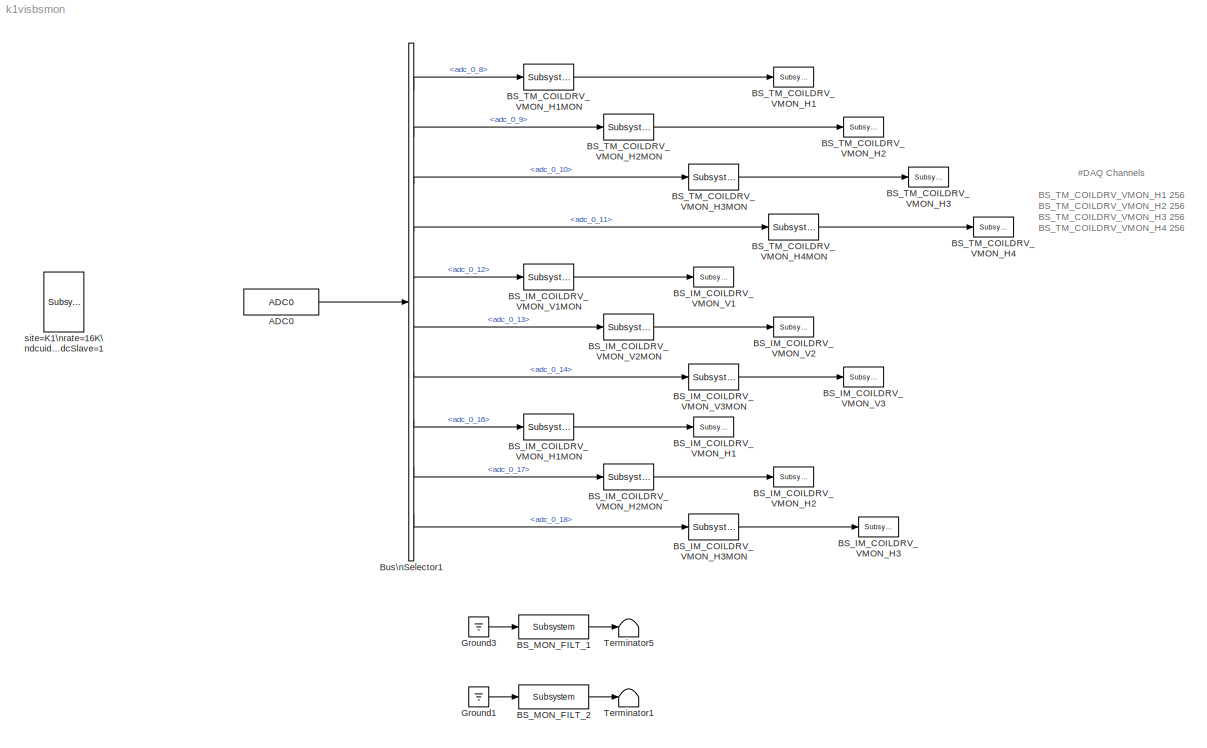
MODEL k1visbsmon
KIND model
BLOCK [Reference] ADC0  REF=cdsAdcx0/ADC0
  AttributesFormatString = %<Description>\\n%<Tag>
  Description = type-GSC_16AI64SSA\ncard_num=0
  Ports = [0, 1]
  SID = 257
  SourceBlock = cdsAdcx0/ADC0
  SourceType = SubSystem
  Tag = cdsAdc
BLOCK [Reference] BS_IM_COILDRV_VMON_H1  REF=cdsTP/Subsystem
  AttributesFormatString = %<Tag>
  Ports = [1]
  SID = 697
  SourceBlock = cdsTP/Subsystem
  SourceType = SubSystem
  Tag = Test Point
BLOCK [Reference] BS_IM_COILDRV_VMON_H1MON  REF=cdsEpicsOut/Subsystem
  AttributesFormatString = %<Tag>
  Description = Purpose:                                          \nOutput a FE signal to an EPICS channel.           \n                                                  \nOperation:                                        \nTakes input value and passes it to EPICS record.  \n                                                  \nUsage:                                            \nName the part with the desired EPICS...<+14ch>  <repeated x10 — deduplicated; at blocks: BS_IM_COILDRV_VMON_H1MON, BS_IM_COILDRV_VMON_H2MON, BS_IM_COILDRV_VMON_H3MON, BS_IM_COILDRV_VMON_V1MON, BS_IM_COILDRV_VMON_V2MON, BS_IM_COILDRV_VMON_V3MON, BS_TM_COILDRV_VMON_H1MON, BS_TM_COILDRV_VMON_H2MON, BS_TM_COILDRV_VMON_H3MON, BS_TM_COILDRV_VMON_H4MON>
  Ports = [1, 1]
  SID = 698
  SourceBlock = cdsEpicsOut/Subsystem
  SourceType = SubSystem
  Tag = cdsEpicsOutput
BLOCK [Reference] BS_IM_COILDRV_VMON_H2  REF=cdsTP/Subsystem
  AttributesFormatString = %<Tag>
  Ports = [1]
  SID = 699
  SourceBlock = cdsTP/Subsystem
  SourceType = SubSystem
  Tag = Test Point
BLOCK [Reference] BS_IM_COILDRV_VMON_H2MON  REF=cdsEpicsOut/Subsystem
  AttributesFormatString = %<Tag>
  Ports = [1, 1]
  SID = 700
  SourceBlock = cdsEpicsOut/Subsystem
  SourceType = SubSystem
  Tag = cdsEpicsOutput
BLOCK [Reference] BS_IM_COILDRV_VMON_H3  REF=cdsTP/Subsystem
  AttributesFormatString = %<Tag>
  Ports = [1]
  SID = 701
  SourceBlock = cdsTP/Subsystem
  SourceType = SubSystem
  Tag = Test Point
BLOCK [Reference] BS_IM_COILDRV_VMON_H3MON  REF=cdsEpicsOut/Subsystem
  AttributesFormatString = %<Tag>
  Ports = [1, 1]
  SID = 702
  SourceBlock = cdsEpicsOut/Subsystem
  SourceType = SubSystem
  Tag = cdsEpicsOutput
BLOCK [Reference] BS_IM_COILDRV_VMON_V1  REF=cdsTP/Subsystem
  AttributesFormatString = %<Tag>
  Ports = [1]
  SID = 691
  SourceBlock = cdsTP/Subsystem
  SourceType = SubSystem
  Tag = Test Point
BLOCK [Reference] BS_IM_COILDRV_VMON_V1MON  REF=cdsEpicsOut/Subsystem
  AttributesFormatString = %<Tag>
  Ports = [1, 1]
  SID = 692
  SourceBlock = cdsEpicsOut/Subsystem
  SourceType = SubSystem
  Tag = cdsEpicsOutput
BLOCK [Reference] BS_IM_COILDRV_VMON_V2  REF=cdsTP/Subsystem
  AttributesFormatString = %<Tag>
  Ports = [1]
  SID = 693
  SourceBlock = cdsTP/Subsystem
  SourceType = SubSystem
  Tag = Test Point
BLOCK [Reference] BS_IM_COILDRV_VMON_V2MON  REF=cdsEpicsOut/Subsystem
  AttributesFormatString = %<Tag>
  Ports = [1, 1]
  SID = 694
  SourceBlock = cdsEpicsOut/Subsystem
  SourceType = SubSystem
  Tag = cdsEpicsOutput
BLOCK [Reference] BS_IM_COILDRV_VMON_V3  REF=cdsTP/Subsystem
  AttributesFormatString = %<Tag>
  Ports = [1]
  SID = 696
  SourceBlock = cdsTP/Subsystem
  SourceType = SubSystem
  Tag = Test Point
BLOCK [Reference] BS_IM_COILDRV_VMON_V3MON  REF=cdsEpicsOut/Subsystem
  AttributesFormatString = %<Tag>
  Ports = [1, 1]
  SID = 695
  SourceBlock = cdsEpicsOut/Subsystem
  SourceType = SubSystem
  Tag = cdsEpicsOutput
BLOCK [Reference] BS_MON_FILT_1  REF=cdsFilt/Subsystem
  AttributesFormatString = %<Tag>
  Description = Purpose:                                                                                                                                                                                                                                  \nStandard CDS IIR filter module.                                                                                                                                     ...<+1302ch>
  Ports = [1, 1]
  SID = 708
  SourceBlock = cdsFilt/Subsystem
  SourceType = SubSystem
  Tag = cdsFilt
BLOCK [Reference] BS_MON_FILT_2  REF=cdsFilt/Subsystem
  AttributesFormatString = %<Tag>
  Description = Purpose:                                                                                                                                                                                                                                  \nStandard CDS IIR filter module.                                                                                                                                     ...<+1302ch>
  Ports = [1, 1]
  SID = 709
  SourceBlock = cdsFilt/Subsystem
  SourceType = SubSystem
  Tag = cdsFilt
BLOCK [Reference] BS_TM_COILDRV_VMON_H1  REF=cdsTP/Subsystem
  AttributesFormatString = %<Tag>
  Ports = [1]
  SID = 684
  SourceBlock = cdsTP/Subsystem
  SourceType = SubSystem
  Tag = Test Point
BLOCK [Reference] BS_TM_COILDRV_VMON_H1MON  REF=cdsEpicsOut/Subsystem
  AttributesFormatString = %<Tag>
  Ports = [1, 1]
  SID = 683
  SourceBlock = cdsEpicsOut/Subsystem
  SourceType = SubSystem
  Tag = cdsEpicsOutput
BLOCK [Reference] BS_TM_COILDRV_VMON_H2  REF=cdsTP/Subsystem
  AttributesFormatString = %<Tag>
  Ports = [1]
  SID = 685
  SourceBlock = cdsTP/Subsystem
  SourceType = SubSystem
  Tag = Test Point
BLOCK [Reference] BS_TM_COILDRV_VMON_H2MON  REF=cdsEpicsOut/Subsystem
  AttributesFormatString = %<Tag>
  Ports = [1, 1]
  SID = 686
  SourceBlock = cdsEpicsOut/Subsystem
  SourceType = SubSystem
  Tag = cdsEpicsOutput
BLOCK [Reference] BS_TM_COILDRV_VMON_H3  REF=cdsTP/Subsystem
  AttributesFormatString = %<Tag>
  Ports = [1]
  SID = 687
  SourceBlock = cdsTP/Subsystem
  SourceType = SubSystem
  Tag = Test Point
BLOCK [Reference] BS_TM_COILDRV_VMON_H3MON  REF=cdsEpicsOut/Subsystem
  AttributesFormatString = %<Tag>
  Ports = [1, 1]
  SID = 688
  SourceBlock = cdsEpicsOut/Subsystem
  SourceType = SubSystem
  Tag = cdsEpicsOutput
BLOCK [Reference] BS_TM_COILDRV_VMON_H4  REF=cdsTP/Subsystem
  AttributesFormatString = %<Tag>
  Ports = [1]
  SID = 689
  SourceBlock = cdsTP/Subsystem
  SourceType = SubSystem
  Tag = Test Point
BLOCK [Reference] BS_TM_COILDRV_VMON_H4MON  REF=cdsEpicsOut/Subsystem
  AttributesFormatString = %<Tag>
  Ports = [1, 1]
  SID = 690
  SourceBlock = cdsEpicsOut/Subsystem
  SourceType = SubSystem
  Tag = cdsEpicsOutput
BLOCK [BusSelector] Bus\nSelector1
  AttributesFormatString = %<Description>
  Description = ADC Selector
  OutputSignals = adc_0_8,adc_0_9,adc_0_10,adc_0_11,adc_0_12,adc_0_13,adc_0_14,adc_0_16,adc_0_17,adc_0_18
  Ports = [1, 10]
  SID = 682
BLOCK [Ground] Ground1
  SID = 712
BLOCK [Ground] Ground3
  SID = 710
BLOCK [Terminator] Terminator1
  SID = 714
BLOCK [Terminator] Terminator5
  SID = 713
BLOCK [Reference] site=K1\nrate=16K\ndcuid=1094\nhost=k1asc0\nspecific_cpu=4\nadcSlave=1  REF=cdsParameters/Subsystem
  AttributesFormatString = %<Tag>
  Description = Purpose:                                                                                                                                                                                                                                \nProvide system parameters to the FE code generator to properly configure the generated EPICS names, rep rate of the FE controller, and the Data Acquisition node ID fo...<+2934ch>
  Ports = []
  SID = 255
  SourceBlock = cdsParameters/Subsystem
  SourceType = SubSystem
  Tag = cdsParameters
ANNOTATION (root): #DAQ Channels\n\nBS_TM_COILDRV_VMON_H1 256\nBS_TM_COILDRV_VMON_H2 256\nBS_TM_COILDRV_VMON_H3 256\nBS_TM_COILDRV_VMON_H4 256\nBS_IM_COILDRV_VMON_V1 256\nBS_IM_COILDRV_VMON_V2 256\nBS_IM_COILDRV_VMON_V3 256\nBS_IM_COILDRV_VMON_H1 256\nBS_IM_COILDRV_VMON_H2 256\nBS_IM_COILDRV_VMON_H3 256\n
LINE ADC0:1 -> Bus\nSelector1:1
LINE BS_IM_COILDRV_VMON_H1MON:1 -> BS_IM_COILDRV_VMON_H1:1
LINE BS_IM_COILDRV_VMON_H2MON:1 -> BS_IM_COILDRV_VMON_H2:1
LINE BS_IM_COILDRV_VMON_H3MON:1 -> BS_IM_COILDRV_VMON_H3:1
LINE BS_IM_COILDRV_VMON_V1MON:1 -> BS_IM_COILDRV_VMON_V1:1
LINE BS_IM_COILDRV_VMON_V2MON:1 -> BS_IM_COILDRV_VMON_V2:1
LINE BS_IM_COILDRV_VMON_V3MON:1 -> BS_IM_COILDRV_VMON_V3:1
LINE BS_MON_FILT_1:1 -> Terminator5:1
LINE BS_MON_FILT_2:1 -> Terminator1:1
LINE BS_TM_COILDRV_VMON_H1MON:1 -> BS_TM_COILDRV_VMON_H1:1
LINE BS_TM_COILDRV_VMON_H2MON:1 -> BS_TM_COILDRV_VMON_H2:1
LINE BS_TM_COILDRV_VMON_H3MON:1 -> BS_TM_COILDRV_VMON_H3:1
LINE BS_TM_COILDRV_VMON_H4MON:1 -> BS_TM_COILDRV_VMON_H4:1
LINE Bus\nSelector1:1 -> BS_TM_COILDRV_VMON_H1MON:1
LINE Bus\nSelector1:10 -> BS_IM_COILDRV_VMON_H3MON:1
LINE Bus\nSelector1:2 -> BS_TM_COILDRV_VMON_H2MON:1
LINE Bus\nSelector1:3 -> BS_TM_COILDRV_VMON_H3MON:1
LINE Bus\nSelector1:4 -> BS_TM_COILDRV_VMON_H4MON:1
LINE Bus\nSelector1:5 -> BS_IM_COILDRV_VMON_V1MON:1
LINE Bus\nSelector1:6 -> BS_IM_COILDRV_VMON_V2MON:1
LINE Bus\nSelector1:7 -> BS_IM_COILDRV_VMON_V3MON:1
LINE Bus\nSelector1:8 -> BS_IM_COILDRV_VMON_H1MON:1
LINE Bus\nSelector1:9 -> BS_IM_COILDRV_VMON_H2MON:1
LINE Ground1:1 -> BS_MON_FILT_2:1
LINE Ground3:1 -> BS_MON_FILT_1:1
